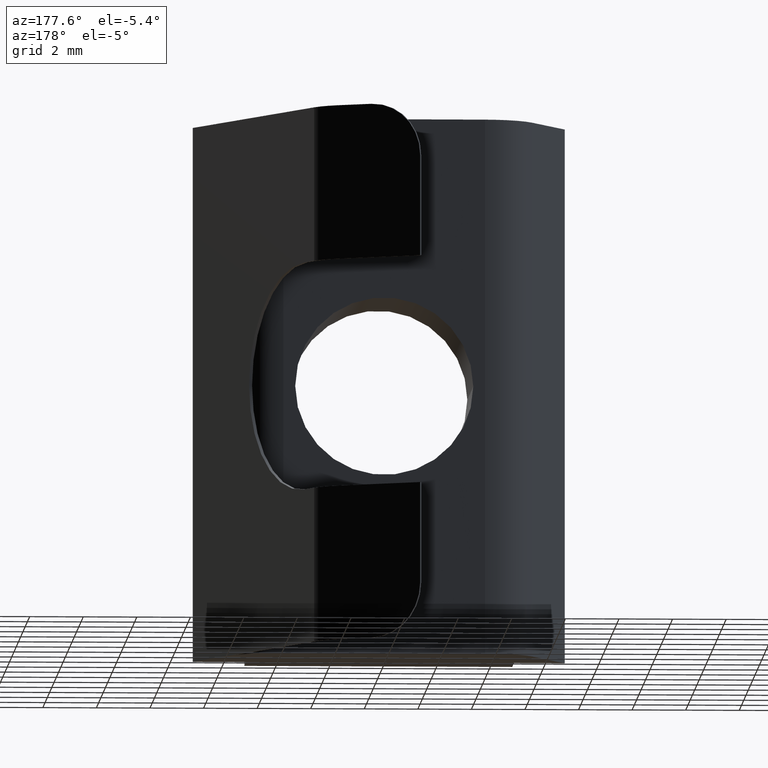
[diagram: clean part render]
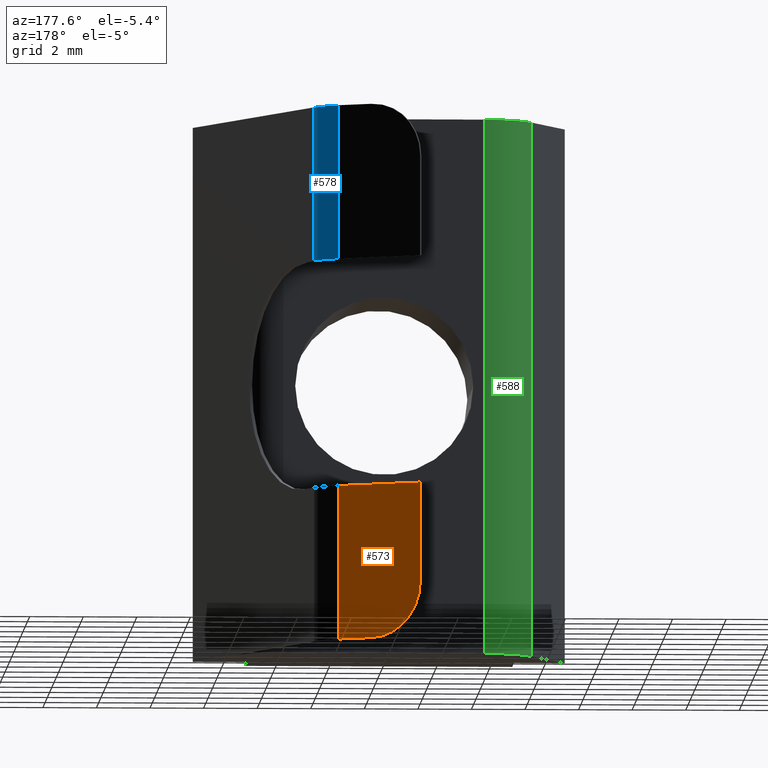
[diagram: same view with three faces highlighted in distinct colors, each labeled with its STEP entity id]
A machine part, auxiliary view with three faces highlighted in distinct colors.
Their STEP definitions:

[orange] entity #573 — the highlighted planar face has unit normal (0.4541, 0.8909, 0).
#21=PLANE('',#636);
#46=FACE_OUTER_BOUND('',#76,.T.);
#76=EDGE_LOOP('',(#432,#433,#434,#435,#436));
#108=LINE('',#862,#172);
#119=LINE('',#899,#183);
#122=LINE('',#910,#186);
#123=LINE('',#913,#187);
#172=VECTOR('',#693,10.);
#183=VECTOR('',#716,10.);
#186=VECTOR('',#729,10.);
#187=VECTOR('',#732,10.);
#239=CIRCLE('',#637,2.);
#260=VERTEX_POINT('',#859);
#261=VERTEX_POINT('',#861);
#271=VERTEX_POINT('',#897);
#274=VERTEX_POINT('',#909);
#275=VERTEX_POINT('',#911);
#317=EDGE_CURVE('',#261,#260,#108,.T.);
#332=EDGE_CURVE('',#271,#260,#119,.T.);
#337=EDGE_CURVE('',#274,#271,#122,.T.);
#338=EDGE_CURVE('',#275,#274,#239,.T.);
#339=EDGE_CURVE('',#275,#261,#123,.T.);
#432=ORIENTED_EDGE('',*,*,#317,.T.);
#433=ORIENTED_EDGE('',*,*,#332,.F.);
#434=ORIENTED_EDGE('',*,*,#337,.F.);
#435=ORIENTED_EDGE('',*,*,#338,.F.);
#436=ORIENTED_EDGE('',*,*,#339,.T.);
#573=ADVANCED_FACE('',(#46),#21,.T.);
#636=AXIS2_PLACEMENT_3D('',#908,#727,#728);
#637=AXIS2_PLACEMENT_3D('',#912,#730,#731);
#693=DIRECTION('',(0.890925841718743,-0.454148813229484,-2.43361688246749E-16));
#716=DIRECTION('',(0.,0.,1.));
#727=DIRECTION('center_axis',(0.454148813229484,0.890925841718743,0.));
#728=DIRECTION('ref_axis',(-0.890925841718743,0.454148813229484,0.));
#729=DIRECTION('',(0.890925841718743,-0.454148813229484,0.));
#730=DIRECTION('center_axis',(-0.454148813229484,-0.890925841718743,0.));
#731=DIRECTION('ref_axis',(-0.629979704213658,0.321131705502387,-0.707106781186548));
#732=DIRECTION('',(0.,0.,1.));
#859=CARTESIAN_POINT('',(1.93103694289108,9.28784389332367,5.75));
#861=CARTESIAN_POINT('',(-1.04639660277456,10.8055885224671,5.75));
#862=CARTESIAN_POINT('',(1.77415404343522,9.36781483957709,5.75));
#897=CARTESIAN_POINT('',(1.93103694289108,9.28784389332367,0.));
#899=CARTESIAN_POINT('',(1.93103694289108,9.28784389332367,0.));
#908=CARTESIAN_POINT('Origin',(2.51730676410041,8.98899326954915,0.));
#909=CARTESIAN_POINT('',(0.735455080662925,9.89729089600812,0.));
#910=CARTESIAN_POINT('',(-1.04639660277456,10.8055885224671,0.));
#911=CARTESIAN_POINT('',(-1.04639660277456,10.8055885224671,2.));
#912=CARTESIAN_POINT('Origin',(0.735455080662919,9.89729089600811,2.));
#913=CARTESIAN_POINT('',(-1.04639660277456,10.8055885224671,0.));

[blue] entity #578 — the highlighted cylindrical surface (partial cylindrical patch) has radius 2 mm, axis along (0, 0, 1).
#51=FACE_OUTER_BOUND('',#81,.T.);
#81=EDGE_LOOP('',(#455,#456,#457,#458));
#131=LINE('',#934,#195);
#132=LINE('',#937,#196);
#195=VECTOR('',#754,10.);
#196=VECTOR('',#757,10.);
#231=CIRCLE('',#623,2.);
#242=CIRCLE('',#645,2.);
#251=VERTEX_POINT('',#840);
#257=VERTEX_POINT('',#852);
#281=VERTEX_POINT('',#933);
#282=VERTEX_POINT('',#935);
#314=EDGE_CURVE('',#251,#257,#231,.T.);
#349=EDGE_CURVE('',#257,#281,#131,.T.);
#350=EDGE_CURVE('',#281,#282,#242,.T.);
#351=EDGE_CURVE('',#282,#251,#132,.T.);
#455=ORIENTED_EDGE('',*,*,#314,.T.);
#456=ORIENTED_EDGE('',*,*,#349,.T.);
#457=ORIENTED_EDGE('',*,*,#350,.T.);
#458=ORIENTED_EDGE('',*,*,#351,.T.);
#560=CYLINDRICAL_SURFACE('',#644,2.);
#578=ADVANCED_FACE('',(#51),#560,.T.);
#623=AXIS2_PLACEMENT_3D('',#854,#686,#687);
#644=AXIS2_PLACEMENT_3D('',#932,#752,#753);
#645=AXIS2_PLACEMENT_3D('',#936,#755,#756);
#686=DIRECTION('center_axis',(0.,-5.35863314309216E-16,1.));
#687=DIRECTION('ref_axis',(0.709848187401337,0.704354705275003,0.));
#752=DIRECTION('center_axis',(0.,0.,1.));
#753=DIRECTION('ref_axis',(0.709848187401337,0.704354705275003,0.));
#754=DIRECTION('',(0.,0.,1.));
#755=DIRECTION('center_axis',(0.,0.,-1.));
#756=DIRECTION('ref_axis',(0.709848187401337,0.704354705275003,0.));
#757=DIRECTION('',(0.,0.,-1.));
#840=CARTESIAN_POINT('',(2.81159369843194,8.4004194008861,14.25));
#852=CARTESIAN_POINT('',(1.93103694289108,9.28784389332367,14.25));
#854=CARTESIAN_POINT('Origin',(1.02273931643211,7.50599220988618,14.25));
#932=CARTESIAN_POINT('Origin',(1.02273931643211,7.50599220988618,0.));
#933=CARTESIAN_POINT('',(1.93103694289108,9.28784389332367,20.));
#934=CARTESIAN_POINT('',(1.93103694289108,9.28784389332367,0.));
#935=CARTESIAN_POINT('',(2.81159369843194,8.4004194008861,20.));
#936=CARTESIAN_POINT('Origin',(1.02273931643211,7.50599220988618,20.));
#937=CARTESIAN_POINT('',(2.81159369843194,8.4004194008861,0.));

[green] entity #588 — the highlighted cylindrical surface (partial cylindrical patch) has radius 2 mm, axis along (0, 0, 1).
#61=FACE_OUTER_BOUND('',#92,.T.);
#92=EDGE_LOOP('',(#527,#528,#529,#530));
#151=LINE('',#983,#215);
#158=LINE('',#999,#222);
#215=VECTOR('',#800,10.);
#222=VECTOR('',#813,10.);
#244=CIRCLE('',#649,2.);
#247=CIRCLE('',#659,2.);
#287=VERTEX_POINT('',#950);
#288=VERTEX_POINT('',#952);
#297=VERTEX_POINT('',#981);
#303=VERTEX_POINT('',#995);
#359=EDGE_CURVE('',#288,#287,#244,.T.);
#374=EDGE_CURVE('',#287,#297,#151,.T.);
#381=EDGE_CURVE('',#297,#303,#247,.T.);
#382=EDGE_CURVE('',#303,#288,#158,.T.);
#527=ORIENTED_EDGE('',*,*,#359,.T.);
#528=ORIENTED_EDGE('',*,*,#374,.T.);
#529=ORIENTED_EDGE('',*,*,#381,.T.);
#530=ORIENTED_EDGE('',*,*,#382,.T.);
#564=CYLINDRICAL_SURFACE('',#660,2.);
#588=ADVANCED_FACE('',(#61),#564,.T.);
#649=AXIS2_PLACEMENT_3D('',#953,#770,#771);
#659=AXIS2_PLACEMENT_3D('',#997,#809,#810);
#660=AXIS2_PLACEMENT_3D('',#998,#811,#812);
#770=DIRECTION('center_axis',(0.,0.,-1.));
#771=DIRECTION('ref_axis',(-0.525731112119134,0.85065080835204,0.));
#800=DIRECTION('',(0.,0.,-1.));
#809=DIRECTION('center_axis',(0.,0.,1.));
#810=DIRECTION('ref_axis',(-0.525731112119134,0.85065080835204,0.));
#811=DIRECTION('center_axis',(0.,0.,1.));
#812=DIRECTION('ref_axis',(-0.525731112119134,0.85065080835204,0.));
#813=DIRECTION('',(0.,0.,1.));
#950=CARTESIAN_POINT('',(-3.76393202250021,3.8,20.));
#952=CARTESIAN_POINT('',(-5.55278640450004,2.69442719099992,20.));
#953=CARTESIAN_POINT('Origin',(-3.76393202250021,1.8,20.));
#981=CARTESIAN_POINT('',(-3.76393202250021,3.8,0.));
#983=CARTESIAN_POINT('',(-3.76393202250021,3.8,0.));
#995=CARTESIAN_POINT('',(-5.55278640450004,2.69442719099992,0.));
#997=CARTESIAN_POINT('Origin',(-3.76393202250021,1.8,0.));
#998=CARTESIAN_POINT('Origin',(-3.76393202250021,1.8,0.));
#999=CARTESIAN_POINT('',(-5.55278640450004,2.69442719099992,0.));